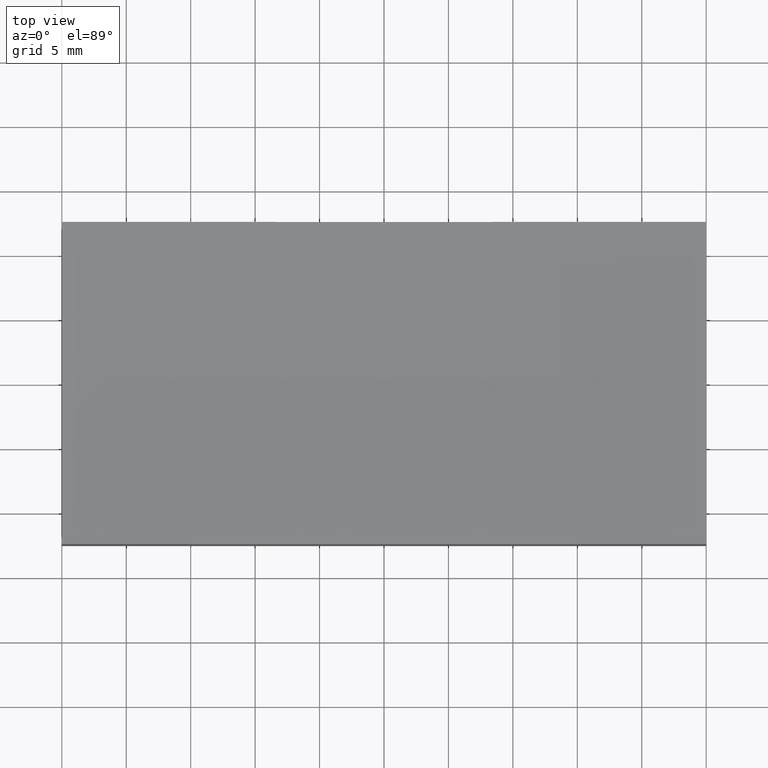
[diagram: clean part render]
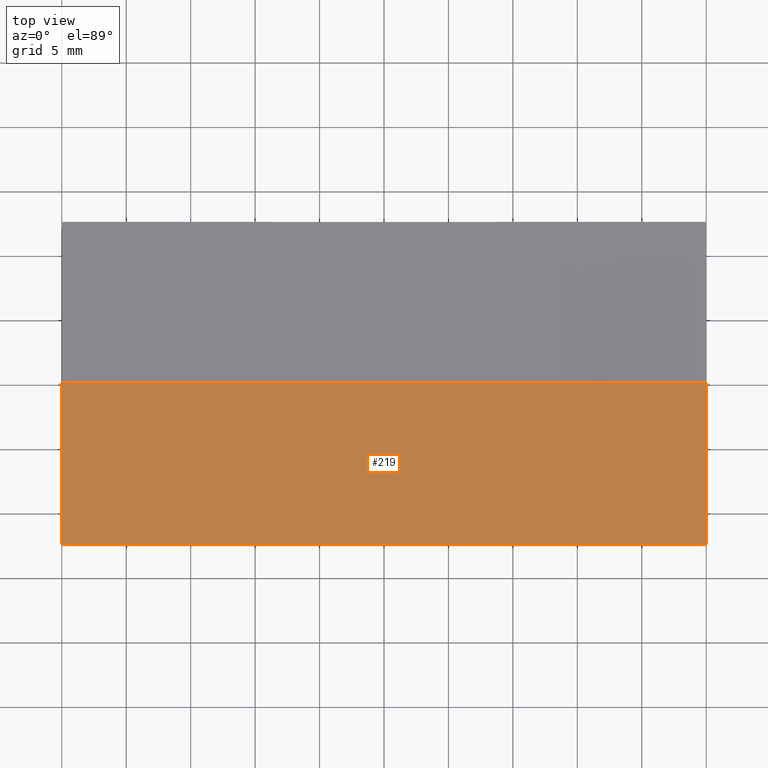
[diagram: same view with one face highlighted and labeled with its STEP entity id]
A machine part, top view. The second image highlights one B-rep face of the part: STEP entity #219.
In plain terms, the highlighted spherical surface has radius 500 mm.
Its self-contained STEP definition (entity closure, byte-faithful):
#6 = EDGE_CURVE ( 'NONE', #144, #97, #69, .T. ) ;
#13 = CARTESIAN_POINT ( 'NONE',  ( 24.99999999999999645, -12.50000000000000000, 9.781861307103511649 ) ) ;
#14 = CIRCLE ( 'NONE', #90, 499.9999999999998863 ) ;
#17 = CARTESIAN_POINT ( 'NONE',  ( 25.00000000000000000, -3.851859888774471706E-31, 9.625391114045534380 ) ) ;
#34 = CARTESIAN_POINT ( 'NONE',  ( 0.000000000000000000, -12.49999999999999645, 509.0000000000000000 ) ) ;
#37 = CARTESIAN_POINT ( 'NONE',  ( -25.00000000000000000, -3.061616997868383043E-15, 9.625391114045534380 ) ) ;
#54 = DIRECTION ( 'NONE',  ( 0.000000000000000000, 0.000000000000000000, 1.000000000000000000 ) ) ;
#57 = CARTESIAN_POINT ( 'NONE',  ( 25.00000000000000000, -6.938893903907228378E-15, 509.0000000000000000 ) ) ;
#64 = CIRCLE ( 'NONE', #205, 499.8437255783051683 ) ;
#67 = AXIS2_PLACEMENT_3D ( 'NONE', #57, #228, #111 ) ;
#68 = ORIENTED_EDGE ( 'NONE', *, *, #74, .T. ) ;
#69 = CIRCLE ( 'NONE', #179, 499.3746088859545011 ) ;
#73 = DIRECTION ( 'NONE',  ( 1.224646799147353207E-16, -1.000000000000000000, -9.557981066130911132E-36 ) ) ;
#74 = EDGE_CURVE ( 'NONE', #190, #180, #14, .T. ) ;
#79 = ORIENTED_EDGE ( 'NONE', *, *, #102, .T. ) ;
#81 = ORIENTED_EDGE ( 'NONE', *, *, #6, .T. ) ;
#90 = AXIS2_PLACEMENT_3D ( 'NONE', #171, #110, #54 ) ;
#94 = EDGE_CURVE ( 'NONE', #127, #190, #189, .T. ) ;
#96 = FACE_OUTER_BOUND ( 'NONE', #176, .T. ) ;
#97 = VERTEX_POINT ( 'NONE', #192 ) ;
#102 = EDGE_CURVE ( 'NONE', #97, #127, #64, .T. ) ;
#106 = ORIENTED_EDGE ( 'NONE', *, *, #108, .F. ) ;
#108 = EDGE_CURVE ( 'NONE', #144, #180, #173, .T. ) ;
#110 = DIRECTION ( 'NONE',  ( 0.000000000000000000, 1.000000000000000000, -0.000000000000000000 ) ) ;
#111 = DIRECTION ( 'NONE',  ( -2.779033527310119773E-16, -1.000000000000000000, 0.000000000000000000 ) ) ;
#122 = AXIS2_PLACEMENT_3D ( 'NONE', #177, #199, #139 ) ;
#125 = DIRECTION ( 'NONE',  ( -1.000000000000000000, -1.387778780781445676E-16, 0.000000000000000000 ) ) ;
#127 = VERTEX_POINT ( 'NONE', #13 ) ;
#133 = CARTESIAN_POINT ( 'NONE',  ( 3.057714655955275700E-14, 0.000000000000000000, 9.000000000000007105 ) ) ;
#139 = DIRECTION ( 'NONE',  ( 1.000000000000000000, 0.000000000000000000, 0.000000000000000000 ) ) ;
#144 = VERTEX_POINT ( 'NONE', #37 ) ;
#149 = ORIENTED_EDGE ( 'NONE', *, *, #94, .T. ) ;
#159 = AXIS2_PLACEMENT_3D ( 'NONE', #244, #73, #194 ) ;
#162 = SPHERICAL_SURFACE ( 'NONE', #122, 500.0000000000000000 ) ;
#169 = DIRECTION ( 'NONE',  ( -0.000000000000000000, -1.000000000000000000, -0.000000000000000000 ) ) ;
#171 = CARTESIAN_POINT ( 'NONE',  ( 0.000000000000000000, 0.000000000000000000, 509.0000000000000000 ) ) ;
#173 = CIRCLE ( 'NONE', #159, 500.0000000000000000 ) ;
#176 = EDGE_LOOP ( 'NONE', ( #106, #81, #79, #149, #68 ) ) ;
#177 = CARTESIAN_POINT ( 'NONE',  ( 0.000000000000000000, 0.000000000000000000, 509.0000000000000000 ) ) ;
#179 = AXIS2_PLACEMENT_3D ( 'NONE', #226, #125, #185 ) ;
#180 = VERTEX_POINT ( 'NONE', #133 ) ;
#185 = DIRECTION ( 'NONE',  ( -1.389516763655059887E-16, 1.000000000000000000, 0.000000000000000000 ) ) ;
#189 = CIRCLE ( 'NONE', #67, 499.3746088859545011 ) ;
#190 = VERTEX_POINT ( 'NONE', #17 ) ;
#192 = CARTESIAN_POINT ( 'NONE',  ( -24.99999999999998934, -12.49999999999999645, 9.781861307103511649 ) ) ;
#194 = DIRECTION ( 'NONE',  ( 1.000000000000000000, 1.224646799147353207E-16, 0.000000000000000000 ) ) ;
#199 = DIRECTION ( 'NONE',  ( 0.000000000000000000, -1.000000000000000000, -0.000000000000000000 ) ) ;
#205 = AXIS2_PLACEMENT_3D ( 'NONE', #34, #169, #227 ) ;
#219 = ADVANCED_FACE ( 'NONE', ( #96 ), #162, .F. ) ;
#226 = CARTESIAN_POINT ( 'NONE',  ( -25.00000000000000000, -3.469446951953614189E-15, 509.0000000000000000 ) ) ;
#227 = DIRECTION ( 'NONE',  ( 1.421085471520200214E-14, 0.000000000000000000, 1.000000000000000000 ) ) ;
#228 = DIRECTION ( 'NONE',  ( 1.000000000000000000, -2.775557561562891351E-16, -0.000000000000000000 ) ) ;
#244 = CARTESIAN_POINT ( 'NONE',  ( 0.000000000000000000, 0.000000000000000000, 509.0000000000000000 ) ) ;